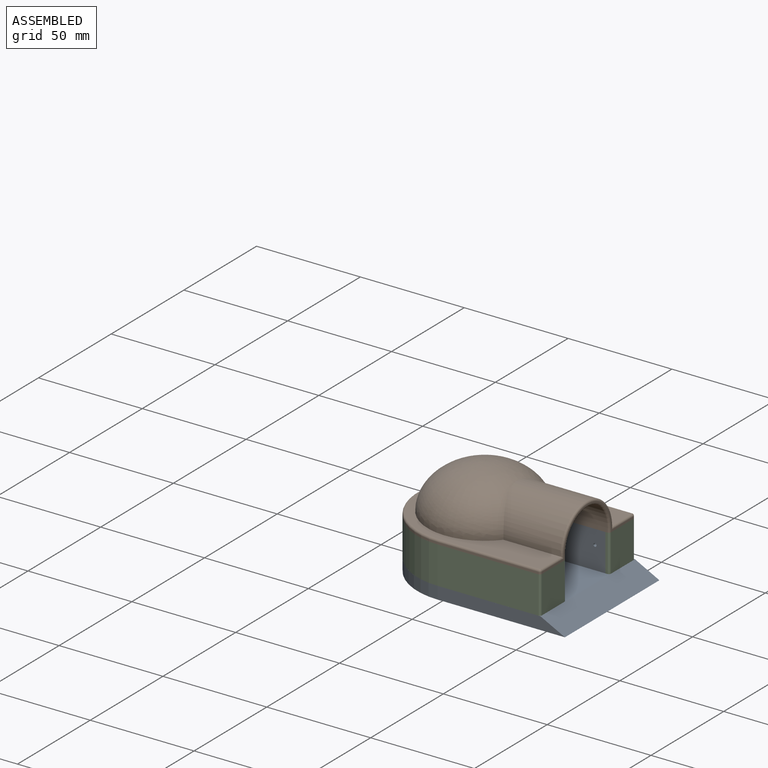
[diagram: assembled view]
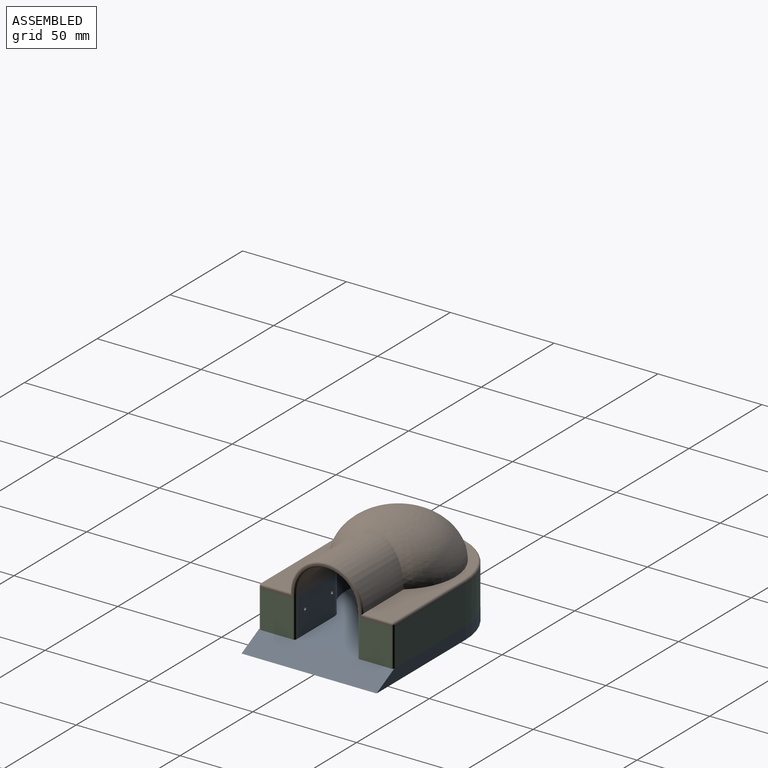
[diagram: assembled view, second angle]
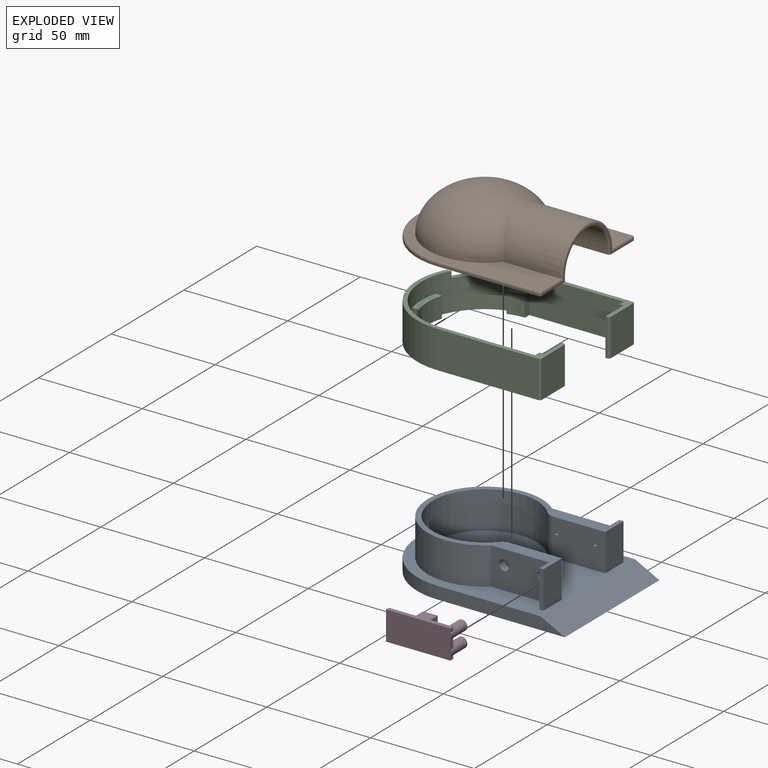
[diagram: exploded view]
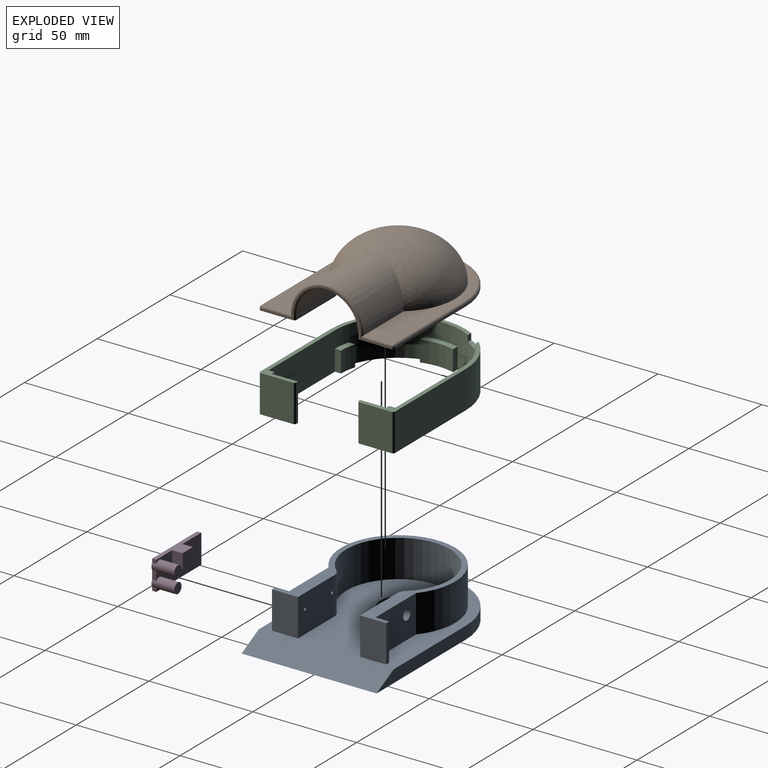
[diagram: exploded view, second angle]
ASSEMBLY  parts=4 mates=3
PART A: 36 faces, bbox 93.8x65x24 mm
  f0: plane 27.74x18mm, normal (0,1,0), area 460.1mm2, adj f4,f5,f12,f17,f30,f32
  f1: plane 27.74x18mm, normal (0,-1,0), area 460.1mm2, adj f5,f6,f12,f17,f24,f26
  f2: plane 18x12.5mm, normal (1,0,0), area 225mm2, adj f3,f11,f12,f17
  f3: plane 18x2mm, normal (0,1,0), area 36mm2, adj f2,f4,f12,f17
  f4: plane 18x6.5mm, normal (-1,0,0), area 117mm2, adj f0,f3,f12,f17
  f5: cylinder r=27.5mm len=55mm, axis (0,0,-1), area 2249.9mm2, adj f0,f1,f12,f17
  f6: plane 18x6.5mm, normal (-1,0,0), area 117mm2, adj f1,f7,f12,f17
  f7: plane 18x2mm, normal (0,-1,0), area 36mm2, adj f6,f8,f12,f17
  f8: plane 18x12.5mm, normal (1,0,0), area 225mm2, adj f7,f9,f12,f17
  f9: plane 25.14x18mm, normal (0,1,0), area 449mm2, adj f8,f12,f17,f20,f22,f23
  f10: cylinder r=25mm len=50mm, axis (0,0,-1), area 2170.7mm2, adj f12,f17,f20,f21
  f11: plane 25.14x18mm, normal (0,-1,0), area 449mm2, adj f2,f12,f17,f21,f28,f29
  f12: plane 75x55mm, normal (0,0,1), area 679.1mm2, adj f0,f1,f2,f3,f4,f5,f6,f7
  f13: plane 61.3x6mm, normal (0,-1,0), area 332.4mm2, adj f16,f17,f18,f19
  f14: plane 61.3x6mm, normal (0,1,0), area 332.4mm2, adj f16,f17,f18,f19
  f15: cylinder r=8.75mm len=17.5mm, axis (0,0,-1), area 55mm2, adj f17,f35
  f16: cylinder r=32.5mm len=65mm, axis (0,0,-1), area 612.6mm2, adj f13,f14,f17,f18
  f17: plane 82x65mm, normal (0,0,1), area 3957.1mm2, adj f0,f1,f2,f3,f4,f5,f6,f7
  f18: plane 93.8x65mm, normal (0,0,-1), area 5442.5mm2, adj f13,f14,f16,f19,f34
  f19: plane 65x11.8mm, normal (0.45,0,0.89), area 860.4mm2, adj f13,f14,f17,f18
  f20: cylinder r=5mm len=18mm, axis (0,0,-1), area 75.7mm2, adj f9,f10,f12,f17
  f21: cylinder r=5mm len=18mm, axis (0,0,-1), area 75.7mm2, adj f10,f11,f12,f17
  f22: cylinder r=0.75mm len=2mm, axis (0,-1,0), area 9.4mm2, adj f9,f27
  f23: cylinder r=0.75mm len=2mm, axis (0,-1,0), area 9.4mm2, adj f9,f25
  f24: cylinder r=2.5mm len=5mm, axis (0,-1,0), area 62.8mm2, adj f1,f25
  f25: plane 5x5mm, normal (0,-1,0), area 17.9mm2, adj f23,f24
  f26: cylinder r=2.5mm len=5mm, axis (0,-1,0), area 62.8mm2, adj f1,f27
  f27: plane 5x5mm, normal (0,-1,0), area 17.9mm2, adj f22,f26
  f28: cylinder r=0.75mm len=2mm, axis (0,1,0), area 9.4mm2, adj f11,f33
  f29: cylinder r=0.75mm len=2mm, axis (0,1,0), area 9.4mm2, adj f11,f31
  f30: cylinder r=2.5mm len=5mm, axis (0,1,0), area 62.8mm2, adj f0,f31
  f31: plane 5x5mm, normal (0,1,0), area 17.9mm2, adj f29,f30
  f32: cylinder r=2.5mm len=5mm, axis (0,1,0), area 62.8mm2, adj f0,f33
  f33: plane 5x5mm, normal (0,1,0), area 17.9mm2, adj f28,f32
  f34: cylinder r=8mm len=16mm, axis (0,0,-1), area 251.3mm2, adj f18,f35
  f35: plane 17.5x17.5mm, normal (0,0,1), area 39.5mm2, adj f15,f34
PART B: 29 faces, bbox 194.7x180.4x130.9 mm
  f0: plane 190x173mm, normal (0,0,1), area 1433.7mm2, adj f1,f23,f24,f25,f26,f27,f28
  f1: torus R=31.5mm, axis (0,0,1), area 158.6mm2, adj f0,f2,f23,f28
  f2: cylinder r=32.5mm len=65mm, axis (0,0,-1), area 102.1mm2, adj f1,f3,f21,f22
  f3: plane 82x65mm, normal (0,0,-1), area 2128mm2, adj f2,f4,f9,f11,f13,f15,f16,f17
  f4: cylinder r=1mm len=2mm, axis (0,0,1), area 3.1mm2, adj f3,f5,f13,f20
  f5: torus R=16mm, axis (-1,0,0), area 75.8mm2, adj f4,f6,f13,f15
  f6: cylinder r=15mm len=32.55mm, axis (1,0,0), area 1375.5mm2, adj f5,f7,f16,f20
  f7: bspline ~33.34x16.82mm, area 161.9mm2, adj f6,f8,f17,f19
  f8: revolved ~43.61x41.64mm, area 526.9mm2, adj f7,f18
  f9: cylinder r=1mm len=1mm, axis (0,0,1), area 1.6mm2, adj f3,f10,f13,f21
  f10: sphere r=1mm, area 1.6mm2, adj f9,f23,f24
  f11: cylinder r=1mm len=1mm, axis (0,0,-1), area 1.6mm2, adj f3,f12,f13,f22
  f12: sphere r=1mm, area 1.6mm2, adj f11,f27,f28
  f13: plane 63x18.5mm, normal (1,0,0), area 57.5mm2, adj f3,f4,f5,f9,f11,f14,f15,f24
  f14: torus R=16.5mm, axis (-1,0,0), area 86.2mm2, adj f13,f24,f26,f27
  f15: cylinder r=1mm len=2mm, axis (0,0,-1), area 3.1mm2, adj f3,f5,f13,f16
  f16: plane 26.14x2mm, normal (0,1,0), area 52.3mm2, adj f3,f6,f15,f17
  f17: cylinder r=5mm len=3.73mm, axis (0,0,-1), area 8.4mm2, adj f3,f7,f16,f18
  f18: cylinder r=25mm len=50mm, axis (0,0,-1), area 241.2mm2, adj f3,f8,f17,f19
  f19: cylinder r=5mm len=3.73mm, axis (0,0,-1), area 8.4mm2, adj f3,f7,f18,f20
  f20: plane 26.14x2mm, normal (0,-1,0), area 52.3mm2, adj f3,f4,f6,f19
  f21: plane 48.5x1mm, normal (0,1,0), area 48.5mm2, adj f2,f3,f9,f23
  f22: plane 48.5x1mm, normal (0,-1,0), area 48.5mm2, adj f2,f3,f11,f28
  f23: cylinder r=1mm len=48.5mm, axis (1,0,0), area 76.2mm2, adj f0,f1,f10,f21
  f24: cylinder r=1mm len=15.03mm, axis (0,1,0), area 22.8mm2, adj f0,f10,f13,f14
  f25: revolved ~48.71x45mm, area 606.7mm2, adj f0,f26
  f26: cylinder r=17.5mm len=35mm, axis (1,0,0), area 1655.7mm2, adj f0,f14,f25
  f27: cylinder r=1mm len=15.03mm, axis (0,-1,0), area 22.8mm2, adj f0,f12,f13,f14
  f28: cylinder r=1mm len=48.5mm, axis (-1,0,0), area 76.2mm2, adj f0,f1,f12,f22
PART C: 38 faces, bbox 82x65x18 mm
  f0: plane 73.42x17.5mm, normal (0,0,1), area 185.8mm2, adj f2,f3,f4,f5,f6,f7,f8,f9
  f1: plane 82x47.5mm, normal (0,0,1), area 265.8mm2, adj f2,f10,f11,f12,f13,f14,f15,f16
  f2: cylinder r=30.5mm len=61mm, axis (0,0,-1), area 1374.3mm2, adj f0,f1,f3,f17,f18,f23,f24,f26
  f3: plane 45.5x18mm, normal (0,-1,0), area 819mm2, adj f0,f2,f4,f18,f27
  f4: plane 18x3mm, normal (-1,0,0), area 54mm2, adj f0,f3,f5,f18
  f5: plane 18x2mm, normal (0,-1,0), area 36mm2, adj f0,f4,f6,f18
  f6: plane 18x12.5mm, normal (-1,0,0), area 225mm2, adj f0,f5,f7,f18
  f7: plane 18x1mm, normal (0,-1,0), area 18mm2, adj f0,f6,f18,f19
  f8: plane 18x15.5mm, normal (1,0,0), area 279mm2, adj f0,f18,f19,f20
  f9: plane 48.5x18mm, normal (0,1,0), area 873mm2, adj f0,f10,f18,f20
  f10: cylinder r=32.5mm len=65mm, axis (0,0,-1), area 1812.1mm2, adj f0,f1,f9,f11,f18,f35,f36,f37
  f11: plane 48.5x18mm, normal (0,-1,0), area 873mm2, adj f1,f10,f18,f21
  f12: plane 18x15.5mm, normal (1,0,0), area 279mm2, adj f1,f18,f21,f22
  f13: plane 18x1mm, normal (0,1,0), area 18mm2, adj f1,f14,f18,f22
  f14: plane 18x12.5mm, normal (-1,0,0), area 225mm2, adj f1,f13,f15,f18
  f15: plane 18x2mm, normal (0,1,0), area 36mm2, adj f1,f14,f16,f18
  f16: plane 18x3mm, normal (-1,0,0), area 54mm2, adj f1,f15,f17,f18
  f17: plane 45.5x18mm, normal (0,1,0), area 819mm2, adj f1,f2,f16,f18,f32
  f18: plane 82x65mm, normal (0,0,-1), area 566.3mm2, adj f2,f3,f4,f5,f6,f7,f8,f9
  f19: cylinder r=1mm len=18mm, axis (0,0,-1), area 28.3mm2, adj f0,f7,f8,f18
  f20: cylinder r=1mm len=18mm, axis (0,0,-1), area 28.3mm2, adj f0,f8,f9,f18
  f21: cylinder r=1mm len=18mm, axis (0,0,-1), area 28.3mm2, adj f1,f11,f12,f18
  f22: cylinder r=1mm len=18mm, axis (0,0,-1), area 28.3mm2, adj f1,f12,f13,f18
  f23: plane 10x3.12mm, normal (0,1,0), area 31.2mm2, adj f2,f18,f25,f26
  f24: plane 10x3.12mm, normal (0,-1,0), area 31.2mm2, adj f2,f18,f25,f26
  f25: cylinder r=27.5mm len=16mm, axis (0,0,-1), area 162.3mm2, adj f18,f23,f24,f26
  f26: plane 16x4.19mm, normal (0,0,1), area 48.6mm2, adj f2,f23,f24,f25
  f27: plane 10x3mm, normal (1,0,0), area 30mm2, adj f3,f18,f29,f30
  f28: plane 10x3.12mm, normal (-1,0,0), area 31.2mm2, adj f2,f18,f29,f30
  f29: cylinder r=27.5mm len=10mm, axis (0,0,-1), area 81.2mm2, adj f18,f27,f28,f30
  f30: plane 8x4.19mm, normal (0,0,1), area 24.3mm2, adj f2,f27,f28,f29
  f31: plane 10x3.12mm, normal (-1,0,0), area 31.2mm2, adj f2,f18,f33,f34
  f32: plane 10x3mm, normal (1,0,0), area 30mm2, adj f17,f18,f33,f34
  f33: cylinder r=27.5mm len=10mm, axis (0,0,-1), area 81.2mm2, adj f18,f31,f32,f34
  f34: plane 8x4.19mm, normal (0,0,1), area 24.3mm2, adj f2,f31,f32,f33
  f35: plane 3x2.8mm, normal (0,-1,0), area 8.4mm2, adj f0,f2,f10,f37
  f36: plane 3x2.28mm, normal (0,1,0), area 6.8mm2, adj f1,f2,f10,f37
  f37: plane 7.71x7mm, normal (0,0,1), area 17.5mm2, adj f2,f10,f35,f36
PART D: 16 faces, bbox 31.5x14x11 mm
  f0: plane 7x5mm, normal (-1,0,0), area 35mm2, adj f1,f3,f4,f15
  f1: plane 31x7mm, normal (0,-1,0), area 97mm2, adj f0,f2,f4,f5,f12,f13,f15
  f2: plane 7x5mm, normal (1,0,0), area 35mm2, adj f1,f3,f4,f15
  f3: plane 7x5mm, normal (0,1,0), area 35mm2, adj f0,f2,f4,f15
  f4: plane 7x7mm, normal (0,0,1), area 49mm2, adj f0,f1,f2,f3
  f5: plane 31.5x14mm, normal (0,0,-1), area 436mm2, adj f1,f6,f8,f10,f11,f12,f13,f14
  f6: cylinder r=2.5mm len=11mm, axis (0,0,-1), area 147.8mm2, adj f5,f7,f10,f14,f15
  f7: plane 5x5mm, normal (0,0,1), area 19.6mm2, adj f6
  f8: cylinder r=2.5mm len=11mm, axis (0,0,-1), area 147.8mm2, adj f5,f9,f13,f14,f15
  f9: plane 5x5mm, normal (0,0,1), area 19.6mm2, adj f8
  f10: plane 2x1.77mm, normal (1,0,0), area 3.5mm2, adj f5,f6,f11,f15
  f11: plane 31x2mm, normal (0,1,0), area 62mm2, adj f5,f10,f12,f15
  f12: plane 14x2mm, normal (-1,0,0), area 28mm2, adj f1,f5,f11,f15
  f13: plane 2x1.77mm, normal (1,0,0), area 3.5mm2, adj f1,f5,f8,f15
  f14: plane 4.46x2mm, normal (1,0,0), area 8.9mm2, adj f5,f6,f8,f15
  f15: plane 31x14mm, normal (0,0,1), area 347.8mm2, adj f0,f1,f2,f3,f6,f8,f10,f11
PLACE A at identity fixed
PLACE B t=(0,0,24)mm
PLACE C t=(0,0,6)mm
PLACE D rot(axis=(-1,0,0),90deg) t=(7.52,-28,4.92)mm
MATE fastened A.f22 <-> D.f8  axis (0,-1,0) through (42.5,-17,17)mm
MATE fastened A.f5 <-> B.f1  axis (0,0,-1) through (0,0,24)mm
MATE fastened C.f14 <-> A.f8  axis (-1,0,0) through (47.5,-21.25,15)mm
